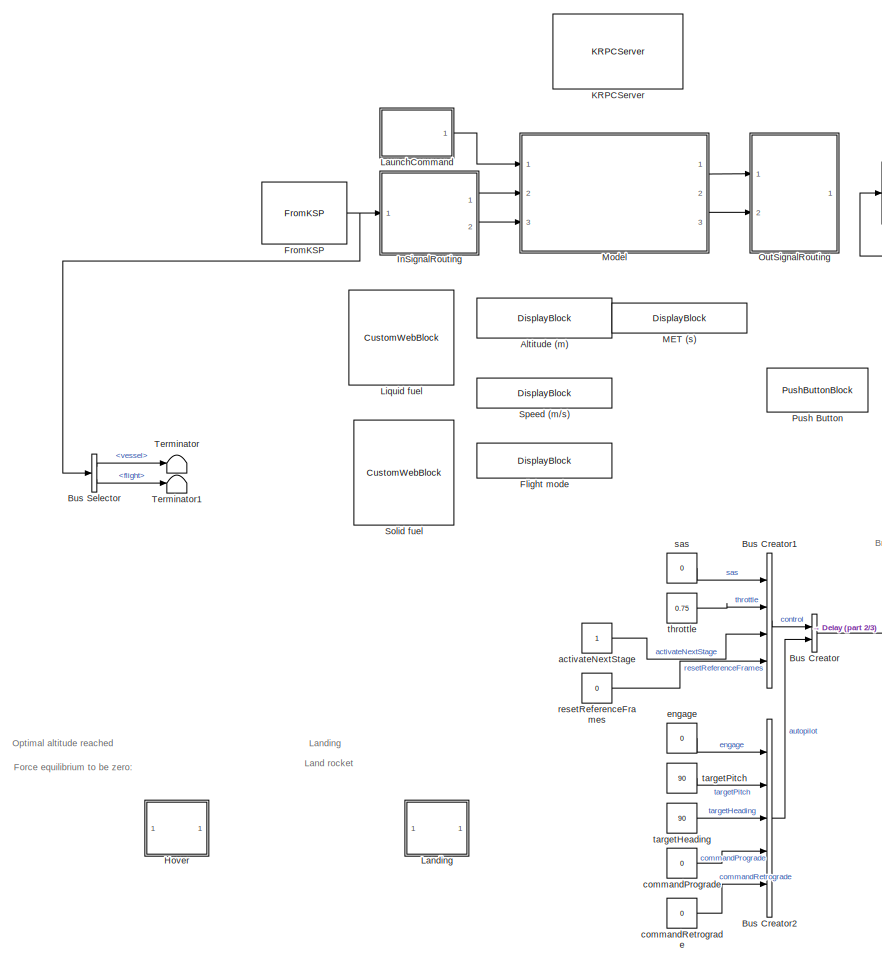
[diagram: root canvas - part 1/3, center side, full height]
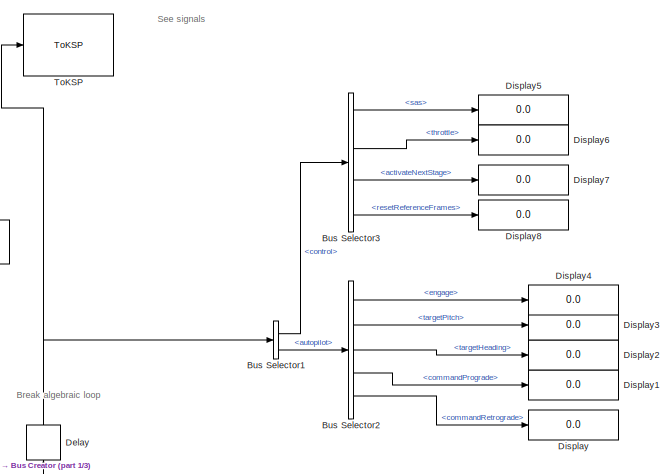
[diagram: root canvas - part 2/3, middle right region]
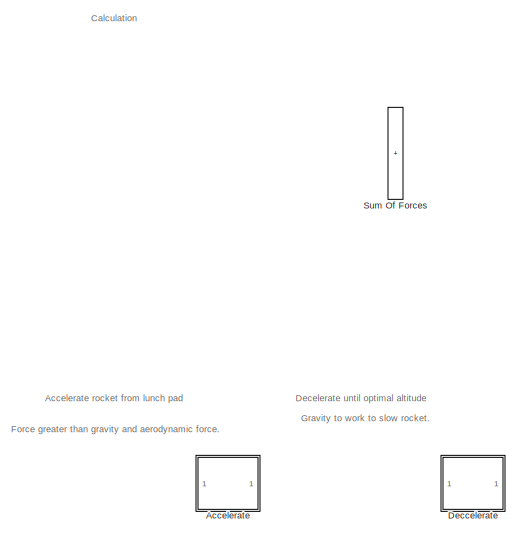
[diagram: root canvas - part 3/3, middle left region]
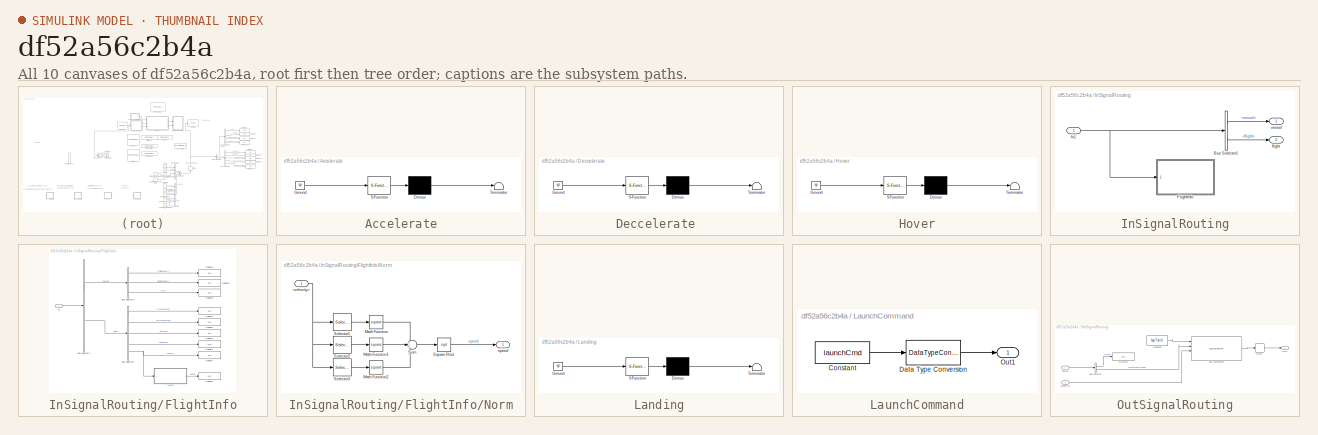
[diagram: thumbnail index - all 10 canvases of the model, root first then tree order]
MODEL slx_df52a56c2b4a
KIND model
CONFIG AbsTol = auto
CONFIG EnableMultiTasking = off
CONFIG FixedStep = 0.01
CONFIG MaxStep = auto
CONFIG MinStep = auto
CONFIG RelTol = 1e-3
CONFIG SampleTimeConstraint = Unconstrained
CONFIG SolverName = FixedStepAuto
CONFIG StartTime = 0.0
CONFIG StopTime = inf
BLOCK [SubSystem] Accelerate
  ErrorFcn = Stateflow.Translate.translate
  PermitHierarchicalResolution = ExplicitOnly
  Ports = []
  RequestExecContextInheritance = off
  SFBlockType = Chart
  TreatAsAtomicUnit = on
BLOCK [Demux] Accelerate/ Demux 
  Outputs = 1
  Ports = [1, 1]
BLOCK [Ground] Accelerate/ Ground 
BLOCK [S-Function] Accelerate/ SFunction 
  EnableBusSupport = off
  FunctionName = sf_sfun
  PortCounts = [1 1]
  Ports = [1, 1]
  SFcnIsStateOwnerBlock = off
  SFunctionDeploymentMode = off
  Tag = Stateflow S-Function 3
BLOCK [Terminator] Accelerate/ Terminator 
BLOCK [DisplayBlock] Altitude (m)
  Format = short
  LabelPosition = Bottom
  Transparency = 1
BLOCK [BusCreator] Bus Creator
  DisplayOption = bar
  InheritFromInputs = on
  Inputs = 2
  NonVirtualBus = on
  OutDataTypeStr = Bus: kspTxIn
  Ports = [2, 1]
BLOCK [BusCreator] Bus Creator1
  DisplayOption = bar
  InheritFromInputs = on
  Inputs = 4
  NonVirtualBus = on
  OutDataTypeStr = Bus: control
  Ports = [4, 1]
BLOCK [BusCreator] Bus Creator2
  DisplayOption = bar
  InheritFromInputs = on
  Inputs = 5
  NonVirtualBus = on
  OutDataTypeStr = Bus: autopilot
  Ports = [5, 1]
BLOCK [BusSelector] Bus Selector
  OutputSignals = vessel,flight
  Ports = [1, 2]
BLOCK [BusSelector] Bus Selector1
  OutputSignals = control,autopilot
  Ports = [1, 2]
BLOCK [BusSelector] Bus Selector2
  OutputSignals = engage,targetPitch,targetHeading,commandPrograde,commandRetrograde
  Ports = [1, 5]
BLOCK [BusSelector] Bus Selector3
  OutputSignals = sas,throttle,activateNextStage,resetReferenceFrames
  Ports = [1, 4]
BLOCK [SubSystem] Deccelerate 
  ErrorFcn = Stateflow.Translate.translate
  PermitHierarchicalResolution = ExplicitOnly
  Ports = []
  RequestExecContextInheritance = off
  SFBlockType = Chart
  TreatAsAtomicUnit = on
BLOCK [Demux] Deccelerate / Demux 
  Outputs = 1
  Ports = [1, 1]
BLOCK [Ground] Deccelerate / Ground 
BLOCK [S-Function] Deccelerate / SFunction 
  EnableBusSupport = off
  FunctionName = sf_sfun
  PortCounts = [1 1]
  Ports = [1, 1]
  SFcnIsStateOwnerBlock = off
  SFunctionDeploymentMode = off
  Tag = Stateflow S-Function 1
BLOCK [Terminator] Deccelerate / Terminator 
BLOCK [Delay] Delay
  DelayLength = 1
  InputPortMap = u0
  NameLocation = right
  Ports = [1, 1]
BLOCK [Display] Display
  Decimation = 1
  Ports = [1]
BLOCK [Display] Display1
  Decimation = 1
  Ports = [1]
BLOCK [Display] Display2
  Decimation = 1
  Ports = [1]
BLOCK [Display] Display3
  Decimation = 1
  Ports = [1]
BLOCK [Display] Display4
  Decimation = 1
  Ports = [1]
BLOCK [Display] Display5
  Decimation = 1
  Ports = [1]
BLOCK [Display] Display6
  Decimation = 1
  Ports = [1]
BLOCK [Display] Display7
  Decimation = 1
  Ports = [1]
BLOCK [Display] Display8
  Decimation = 1
  Ports = [1]
BLOCK [DisplayBlock] Flight mode
  Format = short
  LabelPosition = Bottom
  Transparency = 1
BLOCK [Reference] FromKSP  REF=ksplib/FromKSP  (lib defined in slx_22327d9a050f)
  Ports = [0, 1]
  SourceBlock = ksplib/FromKSP
  SourceType = FromKSP
BLOCK [SubSystem] Hover
  ErrorFcn = Stateflow.Translate.translate
  PermitHierarchicalResolution = ExplicitOnly
  Ports = []
  RequestExecContextInheritance = off
  SFBlockType = Chart
  TreatAsAtomicUnit = on
BLOCK [Demux] Hover/ Demux 
  Outputs = 1
  Ports = [1, 1]
BLOCK [Ground] Hover/ Ground 
BLOCK [S-Function] Hover/ SFunction 
  EnableBusSupport = off
  FunctionName = sf_sfun
  PortCounts = [1 1]
  Ports = [1, 1]
  SFcnIsStateOwnerBlock = off
  SFunctionDeploymentMode = off
  Tag = Stateflow S-Function 5
BLOCK [Terminator] Hover/ Terminator 
BLOCK [SubSystem] InSignalRouting
  Commented = on
  Ports = [1, 2]
  RequestExecContextInheritance = off
BLOCK [BusSelector] InSignalRouting/Bus Selector1
  OutputSignals = vessel,flight
  Ports = [1, 2]
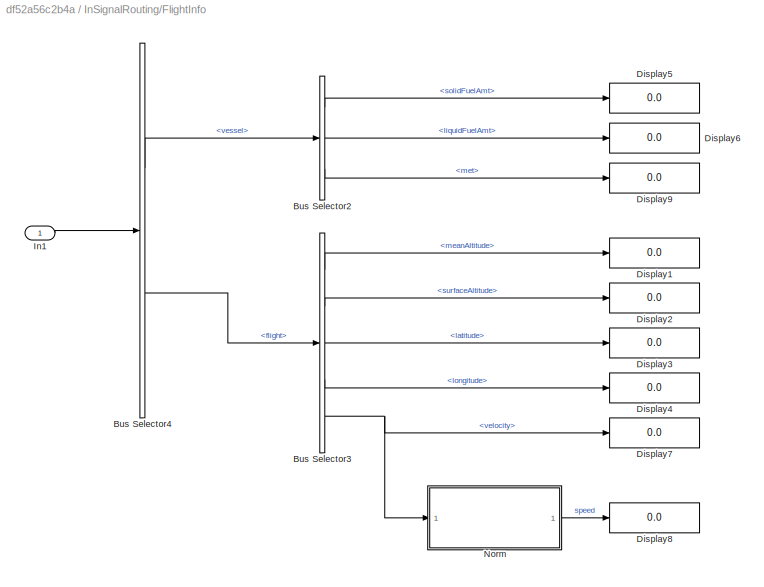
BLOCK [SubSystem] InSignalRouting/FlightInfo
  Ports = [1]
  RequestExecContextInheritance = off
BLOCK [BusSelector] InSignalRouting/FlightInfo/Bus Selector2
  OutputSignals = solidFuelAmt,liquidFuelAmt,met
  Ports = [1, 3]
BLOCK [BusSelector] InSignalRouting/FlightInfo/Bus Selector3
  OutputSignals = meanAltitude,surfaceAltitude,latitude,longitude,velocity
  Ports = [1, 5]
BLOCK [BusSelector] InSignalRouting/FlightInfo/Bus Selector4
  OutputSignals = vessel,flight
  Ports = [1, 2]
BLOCK [Display] InSignalRouting/FlightInfo/Display1
  Decimation = 1
  Ports = [1]
BLOCK [Display] InSignalRouting/FlightInfo/Display2
  Decimation = 1
  Ports = [1]
BLOCK [Display] InSignalRouting/FlightInfo/Display3
  Decimation = 1
  Ports = [1]
BLOCK [Display] InSignalRouting/FlightInfo/Display4
  Decimation = 1
  Ports = [1]
BLOCK [Display] InSignalRouting/FlightInfo/Display5
  Decimation = 1
  Ports = [1]
BLOCK [Display] InSignalRouting/FlightInfo/Display6
  Decimation = 1
  Ports = [1]
BLOCK [Display] InSignalRouting/FlightInfo/Display7
  Decimation = 1
  Ports = [1]
BLOCK [Display] InSignalRouting/FlightInfo/Display8
  Decimation = 1
  Ports = [1]
BLOCK [Display] InSignalRouting/FlightInfo/Display9
  Decimation = 1
  Ports = [1]
BLOCK [Inport] InSignalRouting/FlightInfo/In1
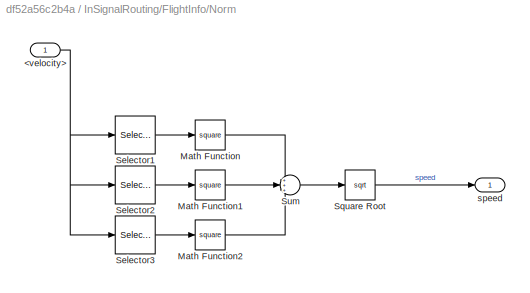
BLOCK [SubSystem] InSignalRouting/FlightInfo/Norm
  Ports = [1, 1]
  RequestExecContextInheritance = off
BLOCK [Inport] InSignalRouting/FlightInfo/Norm/<velocity>
BLOCK [Math] InSignalRouting/FlightInfo/Norm/Math Function
  Operator = square
  Ports = [1, 1]
BLOCK [Math] InSignalRouting/FlightInfo/Norm/Math Function1
  Operator = square
  Ports = [1, 1]
BLOCK [Math] InSignalRouting/FlightInfo/Norm/Math Function2
  Operator = square
  Ports = [1, 1]
BLOCK [Selector] InSignalRouting/FlightInfo/Norm/Selector1
  IndexOptions = Index vector (dialog)
  Indices = 1
  InputPortWidth = 3
  OutputSizes = 1
  Ports = [1, 1]
BLOCK [Selector] InSignalRouting/FlightInfo/Norm/Selector2
  IndexOptions = Index vector (dialog)
  Indices = 2
  InputPortWidth = 3
  OutputSizes = 1
  Ports = [1, 1]
BLOCK [Selector] InSignalRouting/FlightInfo/Norm/Selector3
  IndexOptions = Index vector (dialog)
  Indices = 3
  InputPortWidth = 3
  OutputSizes = 1
  Ports = [1, 1]
BLOCK [Sqrt] InSignalRouting/FlightInfo/Norm/Square Root
BLOCK [Sum] InSignalRouting/FlightInfo/Norm/Sum
  Inputs = +++
  Ports = [3, 1]
BLOCK [Outport] InSignalRouting/FlightInfo/Norm/speed
BLOCK [Inport] InSignalRouting/In1
BLOCK [Outport] InSignalRouting/flight
  Port = 2
BLOCK [Outport] InSignalRouting/vessel
BLOCK [Reference] KRPCServer  REF=ksplib/KRPCServer  (lib defined in slx_22327d9a050f)
  Ports = []
  SourceBlock = ksplib/KRPCServer
  SourceType = KRPCServer
BLOCK [SubSystem] Landing
  ErrorFcn = Stateflow.Translate.translate
  PermitHierarchicalResolution = ExplicitOnly
  Ports = []
  RequestExecContextInheritance = off
  SFBlockType = Chart
  TreatAsAtomicUnit = on
BLOCK [Demux] Landing/ Demux 
  Outputs = 1
  Ports = [1, 1]
BLOCK [Ground] Landing/ Ground 
BLOCK [S-Function] Landing/ SFunction 
  EnableBusSupport = off
  FunctionName = sf_sfun
  PortCounts = [1 1]
  Ports = [1, 1]
  SFcnIsStateOwnerBlock = off
  SFunctionDeploymentMode = off
  Tag = Stateflow S-Function 4
BLOCK [Terminator] Landing/ Terminator 
BLOCK [SubSystem] LaunchCommand
  Commented = on
  Ports = [0, 1]
  RequestExecContextInheritance = off
BLOCK [Constant] LaunchCommand/Constant
  Value = launchCmd
BLOCK [DataTypeConversion] LaunchCommand/Data Type Conversion
  OutDataTypeStr = boolean
  RndMeth = Floor
  SaturateOnIntegerOverflow = off
BLOCK [Outport] LaunchCommand/Out1
BLOCK [CustomWebBlock] Liquid fuel
  Configuration = {"components":[{"name":"CircularScaleComponent","settings":{"bounds":{"max":225,"min":0,"tickInterval":"auto"},"direction":"cw","flipLimits":0,"innerRadius":0.75,"internalTickHeightScaleFactor":1,"labelColor":[255,252,199],"labelFont":{"font":"Arial","fontSize":12},"labelTransparency":1,"minorTickHeightScaleFactor":0.2,"needleImage":{"size":[1890,567],"src":"data:image\/svg+xml;base64,PD94bWwgdmVy...<+15935ch>
  LabelPosition = Hide
  ShowInitialText = on
BLOCK [DisplayBlock] MET (s)
  Format = short
  LabelPosition = Bottom
  Transparency = 1
BLOCK [ModelReference] Model
  Commented = on
  ModelNameDialog = guidance
  ModelReferenceVersion = 1.177
  Ports = [3, 3]
BLOCK [SubSystem] OutSignalRouting
  Commented = on
  Ports = [2, 1]
  RequestExecContextInheritance = off
BLOCK [BusAssignment] OutSignalRouting/Bus Assignment
  AssignedSignals = control.activateNextStage,autopilot,control.throttle
  Ports = [4, 1]
BLOCK [BusSelector] OutSignalRouting/Bus Selector
  OutputSignals = mode,activateNextStage
  Ports = [1, 2]
BLOCK [Constant] OutSignalRouting/Constant
  OutDataTypeStr = Bus: kspTxIn
  Value = kspTxIn0
BLOCK [Delay] OutSignalRouting/Delay
  DelayLength = 1
  InputPortMap = u0
  Ports = [1, 1]
BLOCK [Display] OutSignalRouting/Display5
  Decimation = 1
  Ports = [1]
BLOCK [Outport] OutSignalRouting/Out1
BLOCK [Inport] OutSignalRouting/autopilot
  OutDataTypeStr = Bus: autopilot
  Port = 2
BLOCK [Inport] OutSignalRouting/control
  OutDataTypeStr = Bus: mcout
BLOCK [PushButtonBlock] Push Button
  ButtonText = Launch
BLOCK [CustomWebBlock] Solid fuel
  Configuration = {"components":[{"name":"CircularScaleComponent","settings":{"bounds":{"max":750,"min":0,"tickInterval":"auto"},"direction":"cw","flipLimits":0,"innerRadius":0.75,"internalTickHeightScaleFactor":1,"labelColor":[255,252,199],"labelFont":{"font":"Arial","fontSize":12},"labelTransparency":1,"minorTickHeightScaleFactor":0.2,"needleImage":{"size":[1890,567],"src":"data:image\/svg+xml;base64,PD94bWwgdmVy...<+15935ch>
  LabelPosition = Hide
  ShowInitialText = on
BLOCK [DisplayBlock] Speed (m//s)
  Format = short
  LabelPosition = Bottom
  Transparency = 1
BLOCK [Sum] Sum Of Forces
  IconShape = rectangular
  Inputs = |++++
  Ports = [4, 1]
BLOCK [Terminator] Terminator
BLOCK [Terminator] Terminator1
BLOCK [Reference] ToKSP  REF=ksplib/ToKSP  (lib defined in slx_22327d9a050f)
  Ports = [1]
  SourceBlock = ksplib/ToKSP
  SourceType = ToKSP
BLOCK [Constant] activateNextStage
  OutDataTypeStr = boolean
BLOCK [Constant] commandPrograde
  OutDataTypeStr = boolean
  Value = 0
BLOCK [Constant] commandRetrograde
  OutDataTypeStr = boolean
  Value = 0
BLOCK [Constant] engage
  OutDataTypeStr = boolean
  Value = 0
BLOCK [Constant] resetReferenceFrames
  OutDataTypeStr = boolean
  Value = 0
BLOCK [Constant] sas
  OutDataTypeStr = boolean
  Value = 0
BLOCK [Constant] targetHeading
  Value = 90
BLOCK [Constant] targetPitch
  Value = 90
BLOCK [Constant] throttle
  Value = 0.75
ANNOTATION (root): Accelerate rocket from lunch pad
ANNOTATION (root): Break algebraic loop
ANNOTATION (root): Calculation
ANNOTATION (root): Decelerate until optimal altitude
ANNOTATION (root): Force equilibrium to be zero:
ANNOTATION (root): Force greater than gravity and aerodynamic force.
ANNOTATION (root): Gravity to work to slow rocket.
ANNOTATION (root): Land rocket
ANNOTATION (root): Landing
ANNOTATION (root): Optimal altitude reached
ANNOTATION (root): See signals
LINE Bus Creator1:1 -> Bus Creator:1
LINE Bus Creator2:1 -> Bus Creator:2
LINE Bus Creator:1 -> Delay:1
LINE Bus Selector1:1 -> Bus Selector3:1
LINE Bus Selector1:2 -> Bus Selector2:1
LINE Bus Selector2:1 -> Display4:1
LINE Bus Selector2:2 -> Display3:1
LINE Bus Selector2:3 -> Display2:1
LINE Bus Selector2:4 -> Display1:1
LINE Bus Selector2:5 -> Display:1
LINE Bus Selector3:1 -> Display5:1
LINE Bus Selector3:2 -> Display6:1
LINE Bus Selector3:3 -> Display7:1
LINE Bus Selector3:4 -> Display8:1
LINE Bus Selector:1 -> Terminator:1
LINE Bus Selector:2 -> Terminator1:1
NET Delay:1 -> Bus Selector1:1, ToKSP:1
NET FromKSP:1 -> Bus Selector:1, InSignalRouting:1
LINE InSignalRouting/Bus Selector1:1 -> InSignalRouting/vessel:1
LINE InSignalRouting/Bus Selector1:2 -> InSignalRouting/flight:1
LINE InSignalRouting/FlightInfo/Bus Selector2:1 -> InSignalRouting/FlightInfo/Display5:1
LINE InSignalRouting/FlightInfo/Bus Selector2:2 -> InSignalRouting/FlightInfo/Display6:1
LINE InSignalRouting/FlightInfo/Bus Selector2:3 -> InSignalRouting/FlightInfo/Display9:1
LINE InSignalRouting/FlightInfo/Bus Selector3:1 -> InSignalRouting/FlightInfo/Display1:1
LINE InSignalRouting/FlightInfo/Bus Selector3:2 -> InSignalRouting/FlightInfo/Display2:1
LINE InSignalRouting/FlightInfo/Bus Selector3:3 -> InSignalRouting/FlightInfo/Display3:1
LINE InSignalRouting/FlightInfo/Bus Selector3:4 -> InSignalRouting/FlightInfo/Display4:1
NET InSignalRouting/FlightInfo/Bus Selector3:5 -> InSignalRouting/FlightInfo/Display7:1, InSignalRouting/FlightInfo/Norm:1
LINE InSignalRouting/FlightInfo/Bus Selector4:1 -> InSignalRouting/FlightInfo/Bus Selector2:1
LINE InSignalRouting/FlightInfo/Bus Selector4:2 -> InSignalRouting/FlightInfo/Bus Selector3:1
LINE InSignalRouting/FlightInfo/In1:1 -> InSignalRouting/FlightInfo/Bus Selector4:1
NET InSignalRouting/FlightInfo/Norm/<velocity>:1 -> InSignalRouting/FlightInfo/Norm/Selector1:1, InSignalRouting/FlightInfo/Norm/Selector2:1, InSignalRouting/FlightInfo/Norm/Selector3:1
LINE InSignalRouting/FlightInfo/Norm/Math Function1:1 -> InSignalRouting/FlightInfo/Norm/Sum:2
LINE InSignalRouting/FlightInfo/Norm/Math Function2:1 -> InSignalRouting/FlightInfo/Norm/Sum:3
LINE InSignalRouting/FlightInfo/Norm/Math Function:1 -> InSignalRouting/FlightInfo/Norm/Sum:1
LINE InSignalRouting/FlightInfo/Norm/Selector1:1 -> InSignalRouting/FlightInfo/Norm/Math Function:1
LINE InSignalRouting/FlightInfo/Norm/Selector2:1 -> InSignalRouting/FlightInfo/Norm/Math Function1:1
LINE InSignalRouting/FlightInfo/Norm/Selector3:1 -> InSignalRouting/FlightInfo/Norm/Math Function2:1
LINE InSignalRouting/FlightInfo/Norm/Square Root:1 -> InSignalRouting/FlightInfo/Norm/speed:1
LINE InSignalRouting/FlightInfo/Norm/Sum:1 -> InSignalRouting/FlightInfo/Norm/Square Root:1
LINE InSignalRouting/FlightInfo/Norm:1 -> InSignalRouting/FlightInfo/Display8:1
NET InSignalRouting/In1:1 -> InSignalRouting/Bus Selector1:1, InSignalRouting/FlightInfo:1
LINE InSignalRouting:1 -> Model:2
LINE InSignalRouting:2 -> Model:3
LINE LaunchCommand/Constant:1 -> LaunchCommand/Data Type Conversion:1
LINE LaunchCommand/Data Type Conversion:1 -> LaunchCommand/Out1:1
LINE LaunchCommand:1 -> Model:1
LINE Model:1 -> OutSignalRouting:1
LINE Model:2 -> OutSignalRouting:2
LINE OutSignalRouting/Bus Assignment:1 -> OutSignalRouting/Delay:1
LINE OutSignalRouting/Bus Selector:1 -> OutSignalRouting/Display5:1
LINE OutSignalRouting/Bus Selector:2 -> OutSignalRouting/Bus Assignment:2
LINE OutSignalRouting/Constant:1 -> OutSignalRouting/Bus Assignment:1
LINE OutSignalRouting/Delay:1 -> OutSignalRouting/Out1:1
LINE OutSignalRouting/autopilot:1 -> OutSignalRouting/Bus Assignment:3
LINE OutSignalRouting/control:1 -> OutSignalRouting/Bus Selector:1
LINE activateNextStage:1 -> Bus Creator1:3
LINE commandPrograde:1 -> Bus Creator2:4
LINE commandRetrograde:1 -> Bus Creator2:5
LINE engage:1 -> Bus Creator2:1
LINE resetReferenceFrames:1 -> Bus Creator1:4
LINE sas:1 -> Bus Creator1:1
LINE targetHeading:1 -> Bus Creator2:3
LINE targetPitch:1 -> Bus Creator2:2
LINE throttle:1 -> Bus Creator1:2
note: NET lines group one-source signal fan-out (src -> all destinations, sorted); 1:1 wires keep LINE
CHART Deccelerate  states=0 transitions=0
CHART Accelerate states=0 transitions=0
CHART Landing states=0 transitions=0
CHART Hover states=0 transitions=0
CHART  states=0 transitions=0
CHART  states=0 transitions=0
CHART  states=0 transitions=0
CHART  states=0 transitions=0
